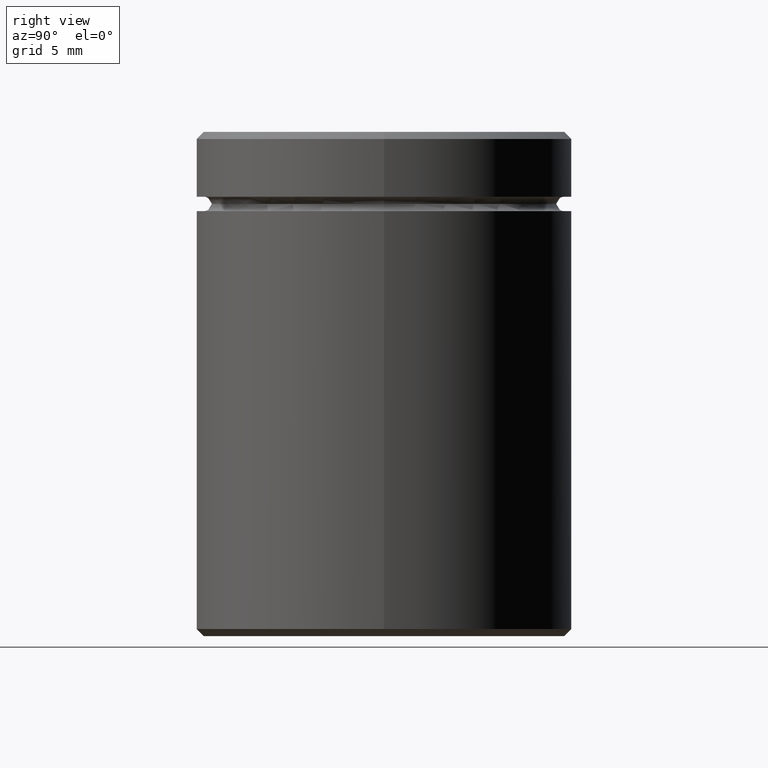
[diagram: clean part render]
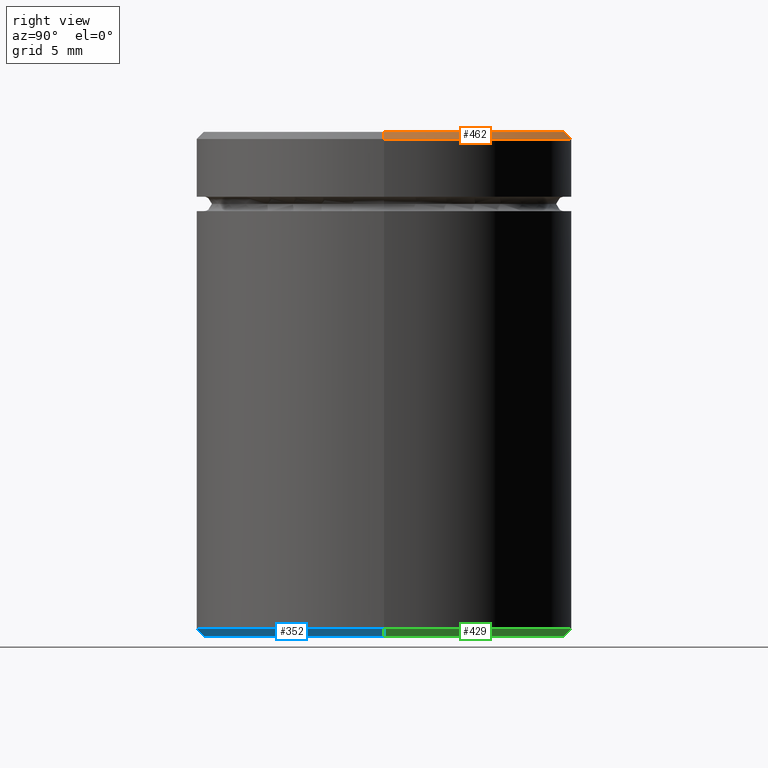
[diagram: same view with three faces highlighted in distinct colors, each labeled with its STEP entity id]
A machine part, right view with three faces highlighted in distinct colors.
Their STEP definitions:

[orange] entity #462 — the highlighted conical surface has half-angle 45 deg.
#4 = DIRECTION ( 'NONE',  ( -0.000000000000000000, -0.000000000000000000, 1.000000000000000000 ) ) ;
#16 = CARTESIAN_POINT ( 'NONE',  ( -12.49999999999999112, 0.000000000000000000, 0.000000000000000000 ) ) ;
#31 = CARTESIAN_POINT ( 'NONE',  ( 0.000000000000000000, 0.000000000000000000, -0.5000000000000073275 ) ) ;
#34 = CIRCLE ( 'NONE', #258, 12.49999999999999112 ) ;
#38 = DIRECTION ( 'NONE',  ( 1.000000000000000000, 0.000000000000000000, 0.000000000000000000 ) ) ;
#45 = ORIENTED_EDGE ( 'NONE', *, *, #61, .T. ) ;
#60 = ORIENTED_EDGE ( 'NONE', *, *, #421, .F. ) ;
#61 = EDGE_CURVE ( 'NONE', #536, #295, #415, .T. ) ;
#67 = AXIS2_PLACEMENT_3D ( 'NONE', #347, #366, #505 ) ;
#107 = CARTESIAN_POINT ( 'NONE',  ( 13.00000000000000000, 0.000000000000000000, -0.5000000000000073275 ) ) ;
#114 = LINE ( 'NONE', #16, #386 ) ;
#118 = CARTESIAN_POINT ( 'NONE',  ( 12.49999999999999112, 1.530808498934190141E-15, 0.000000000000000000 ) ) ;
#145 = VECTOR ( 'NONE', #249, 1000.000000000000000 ) ;
#173 = VERTEX_POINT ( 'NONE', #320 ) ;
#196 = VERTEX_POINT ( 'NONE', #286 ) ;
#202 = DIRECTION ( 'NONE',  ( 1.000000000000000000, 0.000000000000000000, 0.000000000000000000 ) ) ;
#210 = EDGE_CURVE ( 'NONE', #536, #173, #34, .T. ) ;
#249 = DIRECTION ( 'NONE',  ( 0.7071067811865487940, 8.659560562354950115E-17, -0.7071067811865463515 ) ) ;
#258 = AXIS2_PLACEMENT_3D ( 'NONE', #406, #4, #38 ) ;
#286 = CARTESIAN_POINT ( 'NONE',  ( -13.00000000000000000, 1.592040838891559095E-15, -0.5000000000000073275 ) ) ;
#295 = VERTEX_POINT ( 'NONE', #107 ) ;
#304 = FACE_OUTER_BOUND ( 'NONE', #549, .T. ) ;
#318 = AXIS2_PLACEMENT_3D ( 'NONE', #31, #465, #202 ) ;
#320 = CARTESIAN_POINT ( 'NONE',  ( -12.49999999999999112, 0.000000000000000000, 0.000000000000000000 ) ) ;
#347 = CARTESIAN_POINT ( 'NONE',  ( 0.000000000000000000, 0.000000000000000000, 0.000000000000000000 ) ) ;
#358 = ORIENTED_EDGE ( 'NONE', *, *, #210, .F. ) ;
#366 = DIRECTION ( 'NONE',  ( 0.000000000000000000, 0.000000000000000000, -1.000000000000000000 ) ) ;
#370 = DIRECTION ( 'NONE',  ( -0.7071067811865487940, 0.000000000000000000, -0.7071067811865463515 ) ) ;
#378 = EDGE_CURVE ( 'NONE', #196, #295, #447, .T. ) ;
#386 = VECTOR ( 'NONE', #370, 1000.000000000000000 ) ;
#406 = CARTESIAN_POINT ( 'NONE',  ( 0.000000000000000000, 0.000000000000000000, 0.000000000000000000 ) ) ;
#415 = LINE ( 'NONE', #118, #145 ) ;
#421 = EDGE_CURVE ( 'NONE', #173, #196, #114, .T. ) ;
#447 = CIRCLE ( 'NONE', #318, 13.00000000000000000 ) ;
#462 = ADVANCED_FACE ( 'NONE', ( #304 ), #554, .T. ) ;
#465 = DIRECTION ( 'NONE',  ( 0.000000000000000000, 0.000000000000000000, -1.000000000000000000 ) ) ;
#486 = ORIENTED_EDGE ( 'NONE', *, *, #378, .F. ) ;
#505 = DIRECTION ( 'NONE',  ( -1.000000000000000000, 0.000000000000000000, 0.000000000000000000 ) ) ;
#536 = VERTEX_POINT ( 'NONE', #561 ) ;
#549 = EDGE_LOOP ( 'NONE', ( #358, #45, #486, #60 ) ) ;
#554 = CONICAL_SURFACE ( 'NONE', #67, 12.49999999999999112, 0.7853981633974500554 ) ;
#561 = CARTESIAN_POINT ( 'NONE',  ( 12.49999999999999112, 1.561424668912874519E-15, 0.000000000000000000 ) ) ;

[blue] entity #352 — the highlighted conical surface has half-angle 45 deg.
#1 = LINE ( 'NONE', #481, #518 ) ;
#18 = VERTEX_POINT ( 'NONE', #179 ) ;
#51 = EDGE_CURVE ( 'NONE', #133, #224, #59, .T. ) ;
#59 = LINE ( 'NONE', #142, #306 ) ;
#86 = EDGE_CURVE ( 'NONE', #172, #133, #379, .T. ) ;
#98 = ORIENTED_EDGE ( 'NONE', *, *, #479, .F. ) ;
#101 = DIRECTION ( 'NONE',  ( -1.000000000000000000, 0.000000000000000000, 0.000000000000000000 ) ) ;
#112 = DIRECTION ( 'NONE',  ( 0.000000000000000000, 0.000000000000000000, -1.000000000000000000 ) ) ;
#116 = DIRECTION ( 'NONE',  ( -0.7071067811865487940, 8.659560562354950115E-17, 0.7071067811865463515 ) ) ;
#124 = AXIS2_PLACEMENT_3D ( 'NONE', #289, #192, #152 ) ;
#133 = VERTEX_POINT ( 'NONE', #213 ) ;
#142 = CARTESIAN_POINT ( 'NONE',  ( -13.00000000000000000, 1.592040838891559095E-15, -34.49999999999999289 ) ) ;
#152 = DIRECTION ( 'NONE',  ( -1.000000000000000000, 0.000000000000000000, 0.000000000000000000 ) ) ;
#172 = VERTEX_POINT ( 'NONE', #402 ) ;
#179 = CARTESIAN_POINT ( 'NONE',  ( 13.00000000000000000, 0.000000000000000000, -34.49999999999999289 ) ) ;
#192 = DIRECTION ( 'NONE',  ( -0.000000000000000000, -0.000000000000000000, 1.000000000000000000 ) ) ;
#213 = CARTESIAN_POINT ( 'NONE',  ( -12.49999999999999112, 1.561424668912874519E-15, -35.00000000000000000 ) ) ;
#224 = VERTEX_POINT ( 'NONE', #388 ) ;
#229 = DIRECTION ( 'NONE',  ( 1.000000000000000000, 0.000000000000000000, 0.000000000000000000 ) ) ;
#264 = DIRECTION ( 'NONE',  ( 0.7071067811865487940, 0.000000000000000000, 0.7071067811865463515 ) ) ;
#277 = EDGE_CURVE ( 'NONE', #172, #18, #1, .T. ) ;
#289 = CARTESIAN_POINT ( 'NONE',  ( 0.000000000000000000, 0.000000000000000000, -34.49999999999999289 ) ) ;
#306 = VECTOR ( 'NONE', #116, 1000.000000000000000 ) ;
#340 = CONICAL_SURFACE ( 'NONE', #374, 13.00000000000000000, 0.7853981633974500554 ) ;
#352 = ADVANCED_FACE ( 'NONE', ( #412 ), #340, .T. ) ;
#374 = AXIS2_PLACEMENT_3D ( 'NONE', #543, #551, #229 ) ;
#379 = CIRCLE ( 'NONE', #501, 12.49999999999999112 ) ;
#380 = CIRCLE ( 'NONE', #124, 13.00000000000000000 ) ;
#388 = CARTESIAN_POINT ( 'NONE',  ( -13.00000000000000000, 1.592040838891559095E-15, -34.49999999999999289 ) ) ;
#392 = ORIENTED_EDGE ( 'NONE', *, *, #277, .T. ) ;
#402 = CARTESIAN_POINT ( 'NONE',  ( 12.49999999999999112, 0.000000000000000000, -35.00000000000000000 ) ) ;
#412 = FACE_OUTER_BOUND ( 'NONE', #521, .T. ) ;
#448 = ORIENTED_EDGE ( 'NONE', *, *, #86, .F. ) ;
#479 = EDGE_CURVE ( 'NONE', #224, #18, #380, .T. ) ;
#481 = CARTESIAN_POINT ( 'NONE',  ( 13.00000000000000000, 0.000000000000000000, -34.49999999999999289 ) ) ;
#501 = AXIS2_PLACEMENT_3D ( 'NONE', #503, #112, #101 ) ;
#503 = CARTESIAN_POINT ( 'NONE',  ( 0.000000000000000000, 0.000000000000000000, -35.00000000000000000 ) ) ;
#518 = VECTOR ( 'NONE', #264, 1000.000000000000000 ) ;
#521 = EDGE_LOOP ( 'NONE', ( #525, #448, #392, #98 ) ) ;
#525 = ORIENTED_EDGE ( 'NONE', *, *, #51, .F. ) ;
#543 = CARTESIAN_POINT ( 'NONE',  ( 0.000000000000000000, 0.000000000000000000, -34.49999999999999289 ) ) ;
#551 = DIRECTION ( 'NONE',  ( -0.000000000000000000, -0.000000000000000000, 1.000000000000000000 ) ) ;

[green] entity #429 — the highlighted conical surface has half-angle 45 deg.
#1 = LINE ( 'NONE', #481, #518 ) ;
#18 = VERTEX_POINT ( 'NONE', #179 ) ;
#46 = CARTESIAN_POINT ( 'NONE',  ( 0.000000000000000000, 0.000000000000000000, -34.49999999999999289 ) ) ;
#51 = EDGE_CURVE ( 'NONE', #133, #224, #59, .T. ) ;
#59 = LINE ( 'NONE', #142, #306 ) ;
#90 = CIRCLE ( 'NONE', #409, 12.49999999999999112 ) ;
#96 = DIRECTION ( 'NONE',  ( -1.000000000000000000, 0.000000000000000000, 0.000000000000000000 ) ) ;
#99 = DIRECTION ( 'NONE',  ( -1.000000000000000000, 0.000000000000000000, 0.000000000000000000 ) ) ;
#116 = DIRECTION ( 'NONE',  ( -0.7071067811865487940, 8.659560562354950115E-17, 0.7071067811865463515 ) ) ;
#133 = VERTEX_POINT ( 'NONE', #213 ) ;
#142 = CARTESIAN_POINT ( 'NONE',  ( -13.00000000000000000, 1.592040838891559095E-15, -34.49999999999999289 ) ) ;
#144 = EDGE_CURVE ( 'NONE', #18, #224, #502, .T. ) ;
#154 = DIRECTION ( 'NONE',  ( 1.000000000000000000, 0.000000000000000000, 0.000000000000000000 ) ) ;
#172 = VERTEX_POINT ( 'NONE', #402 ) ;
#179 = CARTESIAN_POINT ( 'NONE',  ( 13.00000000000000000, 0.000000000000000000, -34.49999999999999289 ) ) ;
#189 = AXIS2_PLACEMENT_3D ( 'NONE', #544, #291, #154 ) ;
#213 = CARTESIAN_POINT ( 'NONE',  ( -12.49999999999999112, 1.561424668912874519E-15, -35.00000000000000000 ) ) ;
#221 = DIRECTION ( 'NONE',  ( -0.000000000000000000, -0.000000000000000000, 1.000000000000000000 ) ) ;
#224 = VERTEX_POINT ( 'NONE', #388 ) ;
#231 = ORIENTED_EDGE ( 'NONE', *, *, #51, .T. ) ;
#247 = FACE_OUTER_BOUND ( 'NONE', #547, .T. ) ;
#263 = DIRECTION ( 'NONE',  ( 0.000000000000000000, 0.000000000000000000, -1.000000000000000000 ) ) ;
#264 = DIRECTION ( 'NONE',  ( 0.7071067811865487940, 0.000000000000000000, 0.7071067811865463515 ) ) ;
#277 = EDGE_CURVE ( 'NONE', #172, #18, #1, .T. ) ;
#291 = DIRECTION ( 'NONE',  ( -0.000000000000000000, -0.000000000000000000, 1.000000000000000000 ) ) ;
#306 = VECTOR ( 'NONE', #116, 1000.000000000000000 ) ;
#364 = CONICAL_SURFACE ( 'NONE', #189, 13.00000000000000000, 0.7853981633974500554 ) ;
#365 = AXIS2_PLACEMENT_3D ( 'NONE', #46, #221, #96 ) ;
#388 = CARTESIAN_POINT ( 'NONE',  ( -13.00000000000000000, 1.592040838891559095E-15, -34.49999999999999289 ) ) ;
#397 = ORIENTED_EDGE ( 'NONE', *, *, #277, .F. ) ;
#402 = CARTESIAN_POINT ( 'NONE',  ( 12.49999999999999112, 0.000000000000000000, -35.00000000000000000 ) ) ;
#409 = AXIS2_PLACEMENT_3D ( 'NONE', #458, #263, #99 ) ;
#429 = ADVANCED_FACE ( 'NONE', ( #247 ), #364, .T. ) ;
#454 = EDGE_CURVE ( 'NONE', #133, #172, #90, .T. ) ;
#458 = CARTESIAN_POINT ( 'NONE',  ( 0.000000000000000000, 0.000000000000000000, -35.00000000000000000 ) ) ;
#459 = ORIENTED_EDGE ( 'NONE', *, *, #144, .F. ) ;
#481 = CARTESIAN_POINT ( 'NONE',  ( 13.00000000000000000, 0.000000000000000000, -34.49999999999999289 ) ) ;
#502 = CIRCLE ( 'NONE', #365, 13.00000000000000000 ) ;
#518 = VECTOR ( 'NONE', #264, 1000.000000000000000 ) ;
#541 = ORIENTED_EDGE ( 'NONE', *, *, #454, .F. ) ;
#544 = CARTESIAN_POINT ( 'NONE',  ( 0.000000000000000000, 0.000000000000000000, -34.49999999999999289 ) ) ;
#547 = EDGE_LOOP ( 'NONE', ( #541, #231, #459, #397 ) ) ;